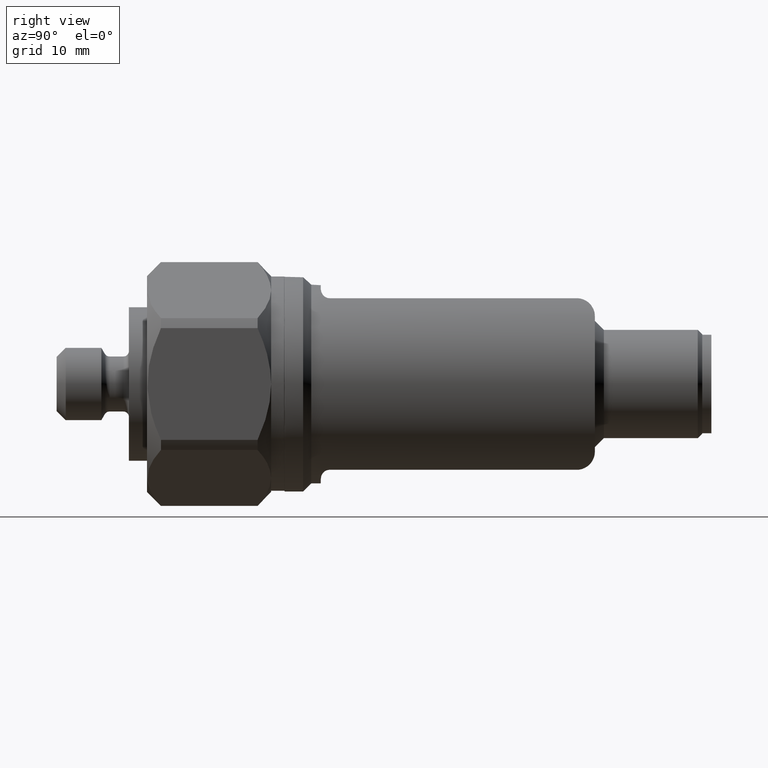
[diagram: clean part render]
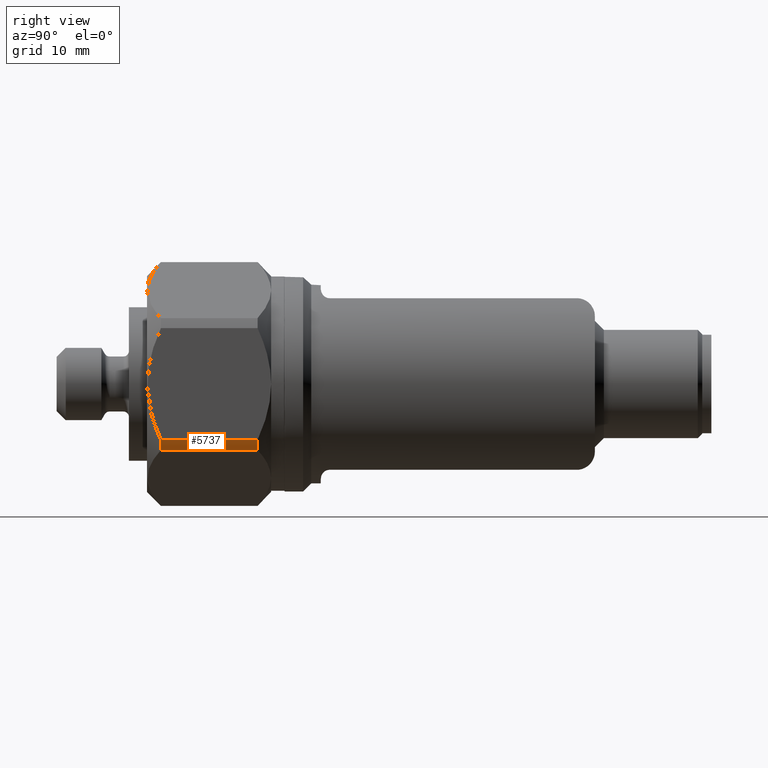
[diagram: same view with one face highlighted and labeled with its STEP entity id]
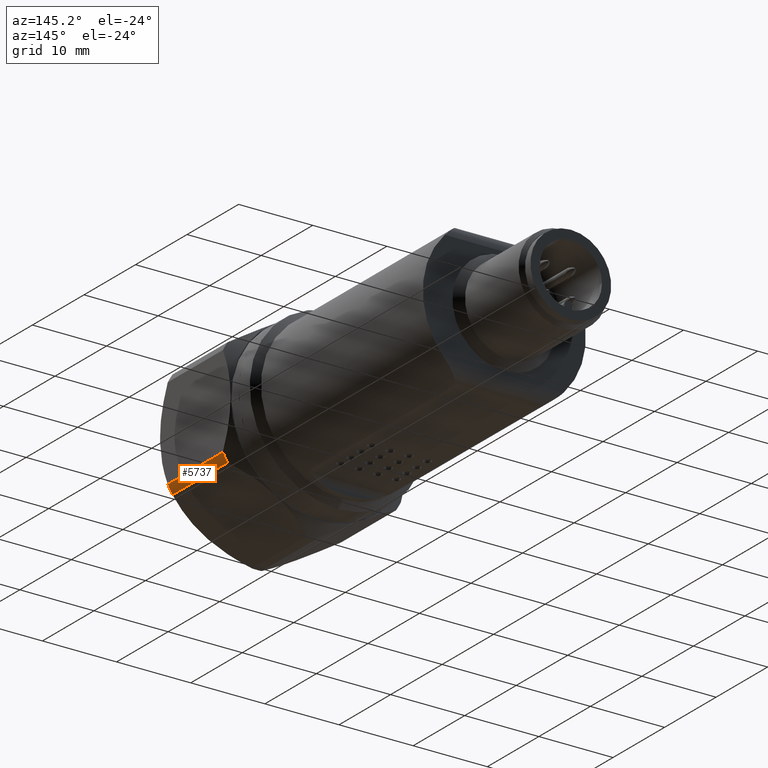
[diagram: same view with one face highlighted and labeled with its STEP entity id]
A machine part, right view. The second image highlights one B-rep face of the part: STEP entity #5737.
A second angle (auxiliary view) of the same face is appended — the face is thin or edge-on in the first view.
In plain terms, the highlighted cylindrical surface (partial cylindrical patch) has radius 13.5 mm, axis along (0, -1, 0).
Its self-contained STEP definition (entity closure, byte-faithful):
#162 = VERTEX_POINT ( 'NONE', #1990 ) ;
#202 = EDGE_CURVE ( 'NONE', #4328, #6169, #3408, .T. ) ;
#232 = AXIS2_PLACEMENT_3D ( 'NONE', #3291, #1972, #4500 ) ;
#284 = VECTOR ( 'NONE', #3777, 1000.000000000000000 ) ;
#1159 = FACE_OUTER_BOUND ( 'NONE', #6517, .T. ) ;
#1305 = VERTEX_POINT ( 'NONE', #3864 ) ;
#1389 = DIRECTION ( 'NONE',  ( 0.000000000000000000, 0.000000000000000000, -1.000000000000000000 ) ) ;
#1595 = ORIENTED_EDGE ( 'NONE', *, *, #4271, .T. ) ;
#1867 = CARTESIAN_POINT ( 'NONE',  ( 12.00000000000000000, -10.00000000000000000, -6.184658438426500204 ) ) ;
#1877 = CARTESIAN_POINT ( 'NONE',  ( 12.00000000000000000, -2.100000000000000089, -6.184658438426500204 ) ) ;
#1972 = DIRECTION ( 'NONE',  ( 0.000000000000000000, -1.000000000000000000, 0.000000000000000000 ) ) ;
#1990 = CARTESIAN_POINT ( 'NONE',  ( 12.00000000000000000, -12.80000000000000071, -6.184658438426500204 ) ) ;
#2513 = DIRECTION ( 'NONE',  ( 0.000000000000000000, 0.000000000000000000, -1.000000000000000000 ) ) ;
#2754 = AXIS2_PLACEMENT_3D ( 'NONE', #8145, #4479, #1389 ) ;
#2947 = CARTESIAN_POINT ( 'NONE',  ( 11.35607132140710007, -2.100000000000000089, -7.299975626200019718 ) ) ;
#3291 = CARTESIAN_POINT ( 'NONE',  ( 0.000000000000000000, -12.80000000000000071, 0.000000000000000000 ) ) ;
#3408 = CIRCLE ( 'NONE', #2754, 13.50000000000000000 ) ;
#3776 = VECTOR ( 'NONE', #7070, 1000.000000000000000 ) ;
#3777 = DIRECTION ( 'NONE',  ( 0.000000000000000000, 1.000000000000000000, 0.000000000000000000 ) ) ;
#3829 = DIRECTION ( 'NONE',  ( 0.000000000000000000, -1.000000000000000000, 0.000000000000000000 ) ) ;
#3864 = CARTESIAN_POINT ( 'NONE',  ( 11.35607132140710007, -12.80000000000000071, -7.299975626200019718 ) ) ;
#4271 = EDGE_CURVE ( 'NONE', #1305, #4328, #5271, .T. ) ;
#4308 = ORIENTED_EDGE ( 'NONE', *, *, #6441, .F. ) ;
#4328 = VERTEX_POINT ( 'NONE', #2947 ) ;
#4479 = DIRECTION ( 'NONE',  ( 0.000000000000000000, -1.000000000000000000, 0.000000000000000000 ) ) ;
#4500 = DIRECTION ( 'NONE',  ( 1.953992523340279613E-14, 0.000000000000000000, 1.000000000000000000 ) ) ;
#4989 = CIRCLE ( 'NONE', #232, 13.50000000000000000 ) ;
#5022 = ORIENTED_EDGE ( 'NONE', *, *, #202, .T. ) ;
#5066 = EDGE_CURVE ( 'NONE', #1305, #162, #4989, .T. ) ;
#5271 = LINE ( 'NONE', #6454, #3776 ) ;
#5662 = CYLINDRICAL_SURFACE ( 'NONE', #7383, 13.50000000000000000 ) ;
#5737 = ADVANCED_FACE ( 'NONE', ( #1159 ), #5662, .T. ) ;
#6169 = VERTEX_POINT ( 'NONE', #1877 ) ;
#6170 = LINE ( 'NONE', #1867, #284 ) ;
#6441 = EDGE_CURVE ( 'NONE', #162, #6169, #6170, .T. ) ;
#6454 = CARTESIAN_POINT ( 'NONE',  ( 11.35607132140710007, -6.000000000000000000, -7.299975626200019718 ) ) ;
#6517 = EDGE_LOOP ( 'NONE', ( #4308, #6730, #1595, #5022 ) ) ;
#6730 = ORIENTED_EDGE ( 'NONE', *, *, #5066, .F. ) ;
#7070 = DIRECTION ( 'NONE',  ( 0.000000000000000000, 1.000000000000000000, 0.000000000000000000 ) ) ;
#7383 = AXIS2_PLACEMENT_3D ( 'NONE', #8159, #3829, #2513 ) ;
#8145 = CARTESIAN_POINT ( 'NONE',  ( 0.000000000000000000, -2.100000000000000089, 0.000000000000000000 ) ) ;
#8159 = CARTESIAN_POINT ( 'NONE',  ( 0.000000000000000000, -45.31432097185360419, 0.000000000000000000 ) ) ;